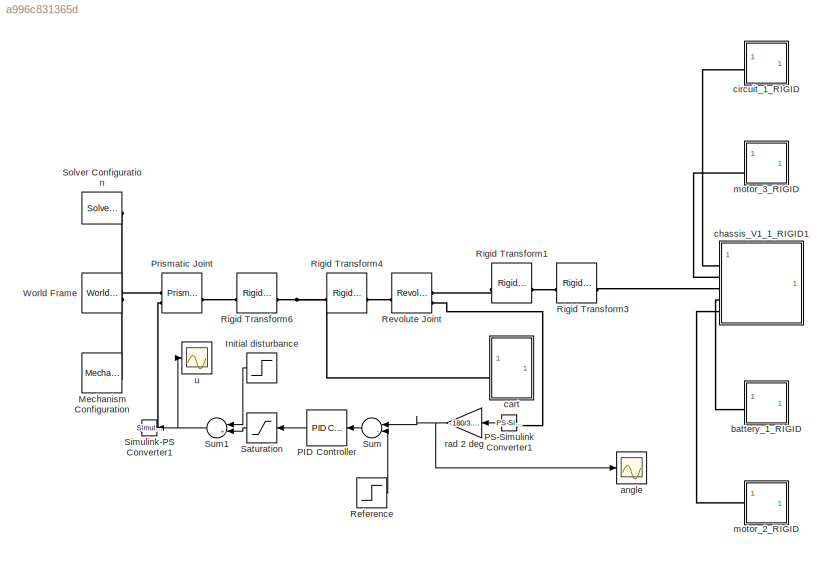
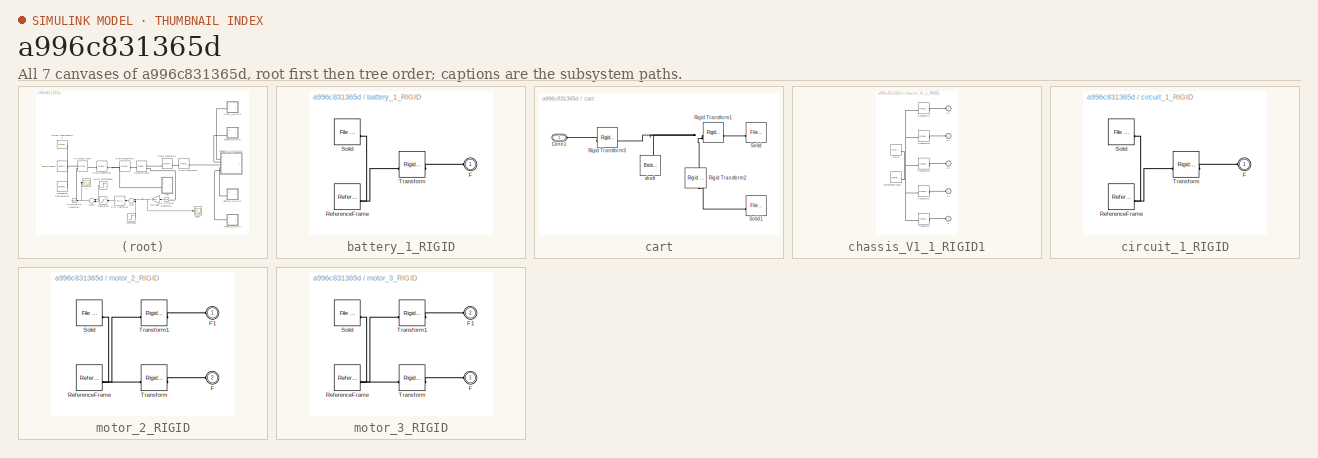
[diagram: thumbnail index - all 7 canvases of the model, root first then tree order]
MODEL slx_a996c831365d
KIND model
CONFIG AbsTol = auto
CONFIG EnableMultiTasking = on
CONFIG FixedStep = auto
CONFIG MaxStep = auto
CONFIG MinStep = auto
CONFIG RelTol = 1e-3
CONFIG SampleTimeConstraint = Unconstrained
CONFIG SolverName = VariableStepAuto
CONFIG StartTime = 0.0
CONFIG StopTime = 0.5
BLOCK [Step] Initial disturbance
  After = 0
  Before = 80
  NameLocation = top
  SampleTime = 0
  Time = 0.01
BLOCK [Reference] Mechanism Configuration  REF=sm_lib/Utilities/Mechanism
Configuration
  SourceBlock = sm_lib/Utilities/Mechanism\nConfiguration
  SourceType = Mechanism\nConfiguration
BLOCK [Reference] PID Controller  REF=slpidlib/PID Controller
  NameLocation = top
  SourceBlock = slpidlib/PID Controller
  SourceType = PID 1dof
BLOCK [Reference] PS-Simulink Converter1  REF=nesl_utility/PS-Simulink
Converter
  NameLocation = top
  SourceBlock = nesl_utility/PS-Simulink\nConverter
  SourceType = PS-Simulink\nConverter
BLOCK [Reference] Prismatic Joint  REF=sm_lib/Joints/Prismatic
Joint
  SourceBlock = sm_lib/Joints/Prismatic\nJoint
  SourceType = Prismatic\nJoint
BLOCK [Step] Reference
  After = 0
  SampleTime = 0
  Time = 0.01
BLOCK [Reference] Revolute Joint  REF=sm_lib/Joints/Revolute Joint
  SourceBlock = sm_lib/Joints/Revolute Joint
  SourceType = Revolute Joint
BLOCK [Reference] Rigid Transform1  REF=sm_lib/Frames and
Transforms/Rigid
Transform
  SourceBlock = sm_lib/Frames and\nTransforms/Rigid\nTransform
  SourceType = Rigid\nTransform
BLOCK [Reference] Rigid Transform3  REF=sm_lib/Frames and
Transforms/Rigid
Transform
  SourceBlock = sm_lib/Frames and\nTransforms/Rigid\nTransform
  SourceType = Rigid\nTransform
BLOCK [Reference] Rigid Transform4  REF=sm_lib/Frames and
Transforms/Rigid
Transform
  SourceBlock = sm_lib/Frames and\nTransforms/Rigid\nTransform
  SourceType = Rigid\nTransform
BLOCK [Reference] Rigid Transform6  REF=sm_lib/Frames and
Transforms/Rigid
Transform
  SourceBlock = sm_lib/Frames and\nTransforms/Rigid\nTransform
  SourceType = Rigid\nTransform
BLOCK [Saturate] Saturation
  LowerLimit = -50
  NameLocation = top
  UpperLimit = 50
BLOCK [Reference] Simulink-PS Converter1  REF=nesl_utility/Simulink-PS
Converter
  NameLocation = top
  SourceBlock = nesl_utility/Simulink-PS\nConverter
  SourceType = Simulink-PS\nConverter
BLOCK [Reference] Solver Configuration  REF=nesl_utility/Solver
Configuration
  SourceBlock = nesl_utility/Solver\nConfiguration
  SourceType = Solver\nConfiguration
BLOCK [Sum] Sum
  Inputs = |-+|
  NameLocation = top
BLOCK [Sum] Sum1
  Inputs = |++|
  NameLocation = top
BLOCK [Reference] World Frame  REF=sm_lib/Frames and
Transforms/World Frame
  SourceBlock = sm_lib/Frames and\nTransforms/World Frame
  SourceType = World Frame
BLOCK [Scope] angle 
  Floating = off
  NumInputPorts = 1
  ScopeSpecificationString = Simulink.scopes.TimeScopeBlockCfg('CurrentConfiguration', extmgr.ConfigurationSet(extmgr.Configuration('Core','General UI',true),extmgr.Configuration('Core','Source UI',true),extmgr.Configuration('Sources','WiredSimulink',true,'DataLoggingVariableName','ScopeData1'),extmgr.Configuration('Visuals','Time Domain',true,'SerializedDisplays',{struct('MinYLimReal','-7.6035','MaxYLimReal','7.60137','YLabe...<+1492ch>
BLOCK [SubSystem] battery_1_RIGID
BLOCK [PMIOPort] battery_1_RIGID/F
  Side = Left
BLOCK [Reference] battery_1_RIGID/ReferenceFrame  REF=sm_lib/Frames and
Transforms/Reference
Frame
  SourceBlock = sm_lib/Frames and\nTransforms/Reference\nFrame
  SourceType = Reference\nFrame
BLOCK [Reference] battery_1_RIGID/Solid  REF=sm_lib/Body Elements/File Solid
  SourceBlock = sm_lib/Body Elements/File Solid
  SourceType = File Solid
BLOCK [Reference] battery_1_RIGID/Transform  REF=sm_lib/Frames and
Transforms/Rigid
Transform
  SourceBlock = sm_lib/Frames and\nTransforms/Rigid\nTransform
  SourceType = Rigid\nTransform
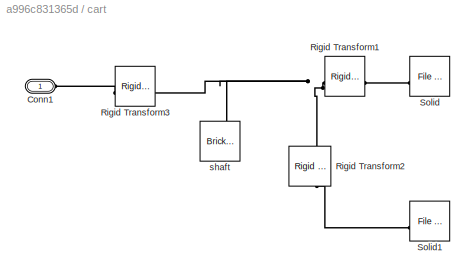
BLOCK [SubSystem] cart
BLOCK [PMIOPort] cart/Conn1
  Side = Left
BLOCK [Reference] cart/Rigid Transform1  REF=sm_lib/Frames and
Transforms/Rigid
Transform
  SourceBlock = sm_lib/Frames and\nTransforms/Rigid\nTransform
  SourceType = Rigid\nTransform
BLOCK [Reference] cart/Rigid Transform2  REF=sm_lib/Frames and
Transforms/Rigid
Transform
  NameLocation = left
  SourceBlock = sm_lib/Frames and\nTransforms/Rigid\nTransform
  SourceType = Rigid\nTransform
BLOCK [Reference] cart/Rigid Transform3  REF=sm_lib/Frames and
Transforms/Rigid
Transform
  SourceBlock = sm_lib/Frames and\nTransforms/Rigid\nTransform
  SourceType = Rigid\nTransform
BLOCK [Reference] cart/Solid  REF=sm_lib/Body Elements/File Solid
  NameLocation = top
  SourceBlock = sm_lib/Body Elements/File Solid
  SourceType = File Solid
BLOCK [Reference] cart/Solid1  REF=sm_lib/Body Elements/File Solid
  NameLocation = top
  SourceBlock = sm_lib/Body Elements/File Solid
  SourceType = File Solid
BLOCK [Reference] cart/shaft   REF=sm_lib/Body Elements/Brick Solid
  NameLocation = right
  SourceBlock = sm_lib/Body Elements/Brick Solid
  SourceType = Brick Solid
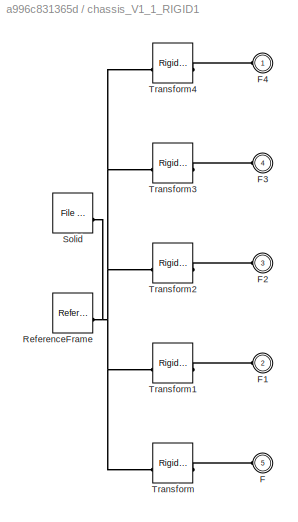
BLOCK [SubSystem] chassis_V1_1_RIGID1
BLOCK [PMIOPort] chassis_V1_1_RIGID1/F
  Port = 5
  Side = Left
BLOCK [PMIOPort] chassis_V1_1_RIGID1/F1
  Port = 2
  Side = Left
BLOCK [PMIOPort] chassis_V1_1_RIGID1/F2
  Port = 3
  Side = Left
BLOCK [PMIOPort] chassis_V1_1_RIGID1/F3
  Port = 4
  Side = Left
BLOCK [PMIOPort] chassis_V1_1_RIGID1/F4
  Side = Left
BLOCK [Reference] chassis_V1_1_RIGID1/ReferenceFrame  REF=sm_lib/Frames and
Transforms/Reference
Frame
  SourceBlock = sm_lib/Frames and\nTransforms/Reference\nFrame
  SourceType = Reference\nFrame
BLOCK [Reference] chassis_V1_1_RIGID1/Solid  REF=sm_lib/Body Elements/File Solid
  SourceBlock = sm_lib/Body Elements/File Solid
  SourceType = File Solid
BLOCK [Reference] chassis_V1_1_RIGID1/Transform  REF=sm_lib/Frames and
Transforms/Rigid
Transform
  SourceBlock = sm_lib/Frames and\nTransforms/Rigid\nTransform
  SourceType = Rigid\nTransform
BLOCK [Reference] chassis_V1_1_RIGID1/Transform1  REF=sm_lib/Frames and
Transforms/Rigid
Transform
  SourceBlock = sm_lib/Frames and\nTransforms/Rigid\nTransform
  SourceType = Rigid\nTransform
BLOCK [Reference] chassis_V1_1_RIGID1/Transform2  REF=sm_lib/Frames and
Transforms/Rigid
Transform
  SourceBlock = sm_lib/Frames and\nTransforms/Rigid\nTransform
  SourceType = Rigid\nTransform
BLOCK [Reference] chassis_V1_1_RIGID1/Transform3  REF=sm_lib/Frames and
Transforms/Rigid
Transform
  SourceBlock = sm_lib/Frames and\nTransforms/Rigid\nTransform
  SourceType = Rigid\nTransform
BLOCK [Reference] chassis_V1_1_RIGID1/Transform4  REF=sm_lib/Frames and
Transforms/Rigid
Transform
  SourceBlock = sm_lib/Frames and\nTransforms/Rigid\nTransform
  SourceType = Rigid\nTransform
BLOCK [SubSystem] circuit_1_RIGID
BLOCK [PMIOPort] circuit_1_RIGID/F
  Side = Left
BLOCK [Reference] circuit_1_RIGID/ReferenceFrame  REF=sm_lib/Frames and
Transforms/Reference
Frame
  SourceBlock = sm_lib/Frames and\nTransforms/Reference\nFrame
  SourceType = Reference\nFrame
BLOCK [Reference] circuit_1_RIGID/Solid  REF=sm_lib/Body Elements/File Solid
  SourceBlock = sm_lib/Body Elements/File Solid
  SourceType = File Solid
BLOCK [Reference] circuit_1_RIGID/Transform  REF=sm_lib/Frames and
Transforms/Rigid
Transform
  SourceBlock = sm_lib/Frames and\nTransforms/Rigid\nTransform
  SourceType = Rigid\nTransform
BLOCK [SubSystem] motor_2_RIGID
BLOCK [PMIOPort] motor_2_RIGID/F
  Port = 2
  Side = Left
BLOCK [PMIOPort] motor_2_RIGID/F1
  Side = Left
BLOCK [Reference] motor_2_RIGID/ReferenceFrame  REF=sm_lib/Frames and
Transforms/Reference
Frame
  SourceBlock = sm_lib/Frames and\nTransforms/Reference\nFrame
  SourceType = Reference\nFrame
BLOCK [Reference] motor_2_RIGID/Solid  REF=sm_lib/Body Elements/File Solid
  SourceBlock = sm_lib/Body Elements/File Solid
  SourceType = File Solid
BLOCK [Reference] motor_2_RIGID/Transform  REF=sm_lib/Frames and
Transforms/Rigid
Transform
  SourceBlock = sm_lib/Frames and\nTransforms/Rigid\nTransform
  SourceType = Rigid\nTransform
BLOCK [Reference] motor_2_RIGID/Transform1  REF=sm_lib/Frames and
Transforms/Rigid
Transform
  SourceBlock = sm_lib/Frames and\nTransforms/Rigid\nTransform
  SourceType = Rigid\nTransform
BLOCK [SubSystem] motor_3_RIGID
BLOCK [PMIOPort] motor_3_RIGID/F
  Side = Left
BLOCK [PMIOPort] motor_3_RIGID/F1
  Port = 2
  Side = Left
BLOCK [Reference] motor_3_RIGID/ReferenceFrame  REF=sm_lib/Frames and
Transforms/Reference
Frame
  SourceBlock = sm_lib/Frames and\nTransforms/Reference\nFrame
  SourceType = Reference\nFrame
BLOCK [Reference] motor_3_RIGID/Solid  REF=sm_lib/Body Elements/File Solid
  SourceBlock = sm_lib/Body Elements/File Solid
  SourceType = File Solid
BLOCK [Reference] motor_3_RIGID/Transform  REF=sm_lib/Frames and
Transforms/Rigid
Transform
  SourceBlock = sm_lib/Frames and\nTransforms/Rigid\nTransform
  SourceType = Rigid\nTransform
BLOCK [Reference] motor_3_RIGID/Transform1  REF=sm_lib/Frames and
Transforms/Rigid
Transform
  SourceBlock = sm_lib/Frames and\nTransforms/Rigid\nTransform
  SourceType = Rigid\nTransform
BLOCK [Gain] rad 2 deg
  Gain = -180/3.14
  NameLocation = top
BLOCK [Scope] u
  Floating = off
  NumInputPorts = 1
  ScopeSpecificationString = Simulink.scopes.TimeScopeBlockCfg('CurrentConfiguration', extmgr.ConfigurationSet(extmgr.Configuration('Core','General UI',true),extmgr.Configuration('Core','Source UI',true),extmgr.Configuration('Sources','WiredSimulink',true,'DataLoggingVariableName','ScopeData1'),extmgr.Configuration('Visuals','Time Domain',true,'SerializedDisplays',{struct('MinYLimReal','-62.5','MaxYLimReal','62.5','YLabelReal...<+1485ch>
LINE Initial disturbance:1 -> Sum1:1
LINE PID Controller:1 -> Saturation:1
LINE PS-Simulink Converter1:1 -> rad 2 deg:1
LINE Reference:1 -> Sum:2
LINE Saturation:1 -> Sum1:2
NET Sum1:1 -> Simulink-PS Converter1:1, u:1
LINE Sum:1 -> PID Controller:1
NET rad 2 deg:1 -> Sum:1, angle :1
PNET net1: Mechanism Configuration:RConn1 -- Prismatic Joint:LConn1 -- Solver Configuration:RConn1 -- World Frame:RConn1
PLINE PS-Simulink Converter1:LConn1 -- Revolute Joint:RConn2
PLINE Prismatic Joint:LConn2 -- Simulink-PS Converter1:RConn1
PLINE Prismatic Joint:RConn1 -- Rigid Transform6:LConn1
PLINE Revolute Joint:LConn1 -- Rigid Transform4:RConn1
PLINE Revolute Joint:RConn1 -- Rigid Transform1:LConn1
PLINE Rigid Transform1:RConn1 -- Rigid Transform3:LConn1
PLINE Rigid Transform3:RConn1 -- chassis_V1_1_RIGID1:LConn3
PNET net2: Rigid Transform4:LConn1 -- Rigid Transform6:RConn1 -- cart:LConn1
PLINE battery_1_RIGID/F:RConn1 -- battery_1_RIGID/Transform:RConn1
PNET net3: battery_1_RIGID/ReferenceFrame:RConn1 -- battery_1_RIGID/Solid:RConn1 -- battery_1_RIGID/Transform:LConn1
PLINE battery_1_RIGID:LConn1 -- chassis_V1_1_RIGID1:LConn4
PLINE cart/Conn1:RConn1 -- cart/Rigid Transform3:LConn1
PNET net4: cart/Rigid Transform1:LConn1 -- cart/Rigid Transform2:LConn1 -- cart/Rigid Transform3:RConn1 -- cart/shaft :RConn1
PLINE cart/Rigid Transform1:RConn1 -- cart/Solid:RConn1
PLINE cart/Rigid Transform2:RConn1 -- cart/Solid1:RConn1
PLINE chassis_V1_1_RIGID1/F1:RConn1 -- chassis_V1_1_RIGID1/Transform1:RConn1
PLINE chassis_V1_1_RIGID1/F2:RConn1 -- chassis_V1_1_RIGID1/Transform2:RConn1
PLINE chassis_V1_1_RIGID1/F3:RConn1 -- chassis_V1_1_RIGID1/Transform3:RConn1
PLINE chassis_V1_1_RIGID1/F4:RConn1 -- chassis_V1_1_RIGID1/Transform4:RConn1
PLINE chassis_V1_1_RIGID1/F:RConn1 -- chassis_V1_1_RIGID1/Transform:RConn1
PNET net5: chassis_V1_1_RIGID1/ReferenceFrame:RConn1 -- chassis_V1_1_RIGID1/Solid:RConn1 -- chassis_V1_1_RIGID1/Transform1:LConn1 -- chassis_V1_1_RIGID1/Transform2:LConn1 -- chassis_V1_1_RIGID1/Transform3:LConn1 -- chassis_V1_1_RIGID1/Transform4:LConn1 -- chassis_V1_1_RIGID1/Transform:LConn1
PLINE chassis_V1_1_RIGID1:LConn1 -- circuit_1_RIGID:LConn1
PLINE chassis_V1_1_RIGID1:LConn2 -- motor_3_RIGID:LConn2
PLINE chassis_V1_1_RIGID1:LConn5 -- motor_2_RIGID:LConn1
PLINE circuit_1_RIGID/F:RConn1 -- circuit_1_RIGID/Transform:RConn1
PNET net6: circuit_1_RIGID/ReferenceFrame:RConn1 -- circuit_1_RIGID/Solid:RConn1 -- circuit_1_RIGID/Transform:LConn1
PLINE motor_2_RIGID/F1:RConn1 -- motor_2_RIGID/Transform1:RConn1
PLINE motor_2_RIGID/F:RConn1 -- motor_2_RIGID/Transform:RConn1
PNET net7: motor_2_RIGID/ReferenceFrame:RConn1 -- motor_2_RIGID/Solid:RConn1 -- motor_2_RIGID/Transform1:LConn1 -- motor_2_RIGID/Transform:LConn1
PLINE motor_3_RIGID/F1:RConn1 -- motor_3_RIGID/Transform1:RConn1
PLINE motor_3_RIGID/F:RConn1 -- motor_3_RIGID/Transform:RConn1
PNET net8: motor_3_RIGID/ReferenceFrame:RConn1 -- motor_3_RIGID/Solid:RConn1 -- motor_3_RIGID/Transform1:LConn1 -- motor_3_RIGID/Transform:LConn1
note: NET lines group one-source signal fan-out (src -> all destinations, sorted); 1:1 wires keep LINE; PNET lines group multi-terminal physical nets as a canonical sorted terminal list (undirected conserving connections); 2-terminal nets keep the pairwise PLINE form
